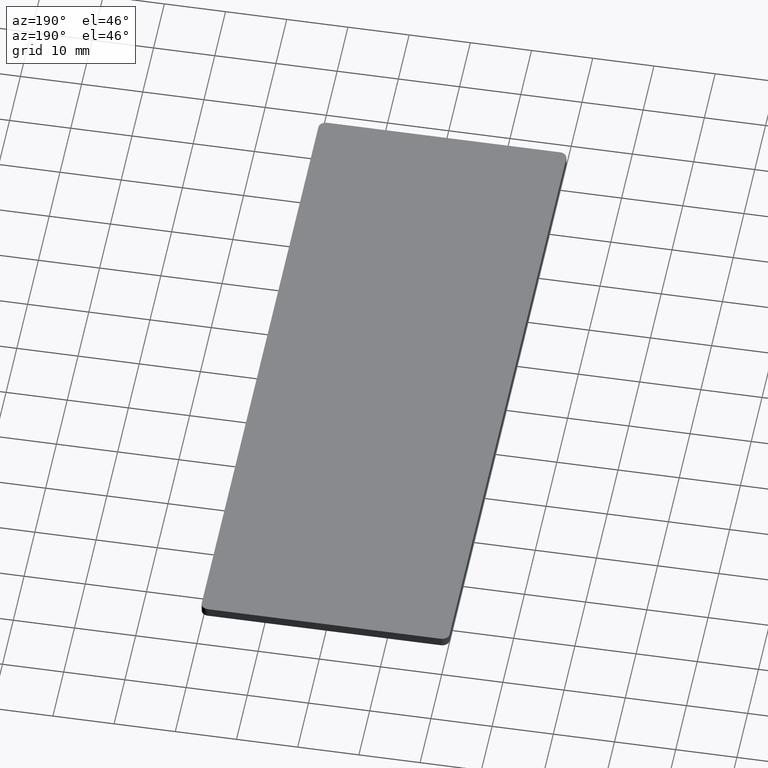
[diagram: clean part render]
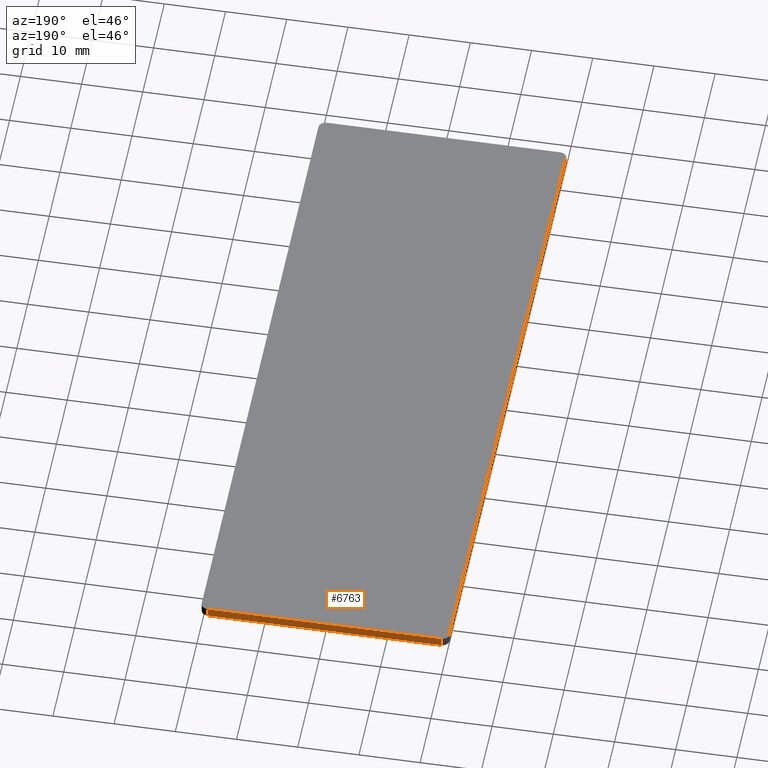
[diagram: same view with one face highlighted and labeled with its STEP entity id]
A machine part, auxiliary view. The second image highlights one B-rep face of the part: STEP entity #6763.
In plain terms, the highlighted planar face has unit normal (0, 1, 0).
Its self-contained STEP definition (entity closure, byte-faithful):
#537 = CARTESIAN_POINT ( 'NONE',  ( 19.04999999999999400, 55.25000000000000000, 1.500000000000000000 ) ) ;
#760 = EDGE_CURVE ( 'NONE', #6534, #10916, #3509, .T. ) ;
#887 = CARTESIAN_POINT ( 'NONE',  ( -19.05000000000000800, 55.25000000000000000, 1.500000000000000000 ) ) ;
#1136 = EDGE_CURVE ( 'NONE', #9168, #10916, #1820, .T. ) ;
#1370 = LINE ( 'NONE', #11237, #6253 ) ;
#1677 = CARTESIAN_POINT ( 'NONE',  ( 19.04999999999999400, 55.25000000000000000, 0.0000000000000000000 ) ) ;
#1820 = LINE ( 'NONE', #7891, #7461 ) ;
#1877 = LINE ( 'NONE', #4191, #7064 ) ;
#3061 = VERTEX_POINT ( 'NONE', #887 ) ;
#3228 = AXIS2_PLACEMENT_3D ( 'NONE', #10281, #5402, #3445 ) ;
#3384 = ORIENTED_EDGE ( 'NONE', *, *, #1136, .F. ) ;
#3445 = DIRECTION ( 'NONE',  ( 0.0000000000000000000, -0.0000000000000000000, 1.000000000000000000 ) ) ;
#3509 = LINE ( 'NONE', #9617, #10037 ) ;
#3917 = DIRECTION ( 'NONE',  ( -0.0000000000000000000, 0.0000000000000000000, -1.000000000000000000 ) ) ;
#4191 = CARTESIAN_POINT ( 'NONE',  ( -20.25000000000000700, 55.25000000000000000, 1.500000000000000000 ) ) ;
#4501 = ORIENTED_EDGE ( 'NONE', *, *, #12465, .T. ) ;
#5032 = DIRECTION ( 'NONE',  ( 1.000000000000000000, 0.0000000000000000000, 0.0000000000000000000 ) ) ;
#5402 = DIRECTION ( 'NONE',  ( 0.0000000000000000000, 1.000000000000000000, 0.0000000000000000000 ) ) ;
#5940 = DIRECTION ( 'NONE',  ( 1.000000000000000000, 0.0000000000000000000, 0.0000000000000000000 ) ) ;
#6253 = VECTOR ( 'NONE', #7460, 1000.000000000000000 ) ;
#6303 = PLANE ( 'NONE',  #3228 ) ;
#6447 = EDGE_CURVE ( 'NONE', #3061, #6534, #1877, .T. ) ;
#6534 = VERTEX_POINT ( 'NONE', #537 ) ;
#6763 = ADVANCED_FACE ( 'NONE', ( #6899 ), #6303, .T. ) ;
#6899 = FACE_OUTER_BOUND ( 'NONE', #12583, .T. ) ;
#7064 = VECTOR ( 'NONE', #5032, 1000.000000000000000 ) ;
#7460 = DIRECTION ( 'NONE',  ( -0.0000000000000000000, -0.0000000000000000000, 1.000000000000000000 ) ) ;
#7461 = VECTOR ( 'NONE', #5940, 1000.000000000000000 ) ;
#7891 = CARTESIAN_POINT ( 'NONE',  ( -20.25000000000000700, 55.25000000000000000, 0.0000000000000000000 ) ) ;
#8606 = CARTESIAN_POINT ( 'NONE',  ( -19.05000000000000800, 55.25000000000000000, 0.0000000000000000000 ) ) ;
#9168 = VERTEX_POINT ( 'NONE', #8606 ) ;
#9617 = CARTESIAN_POINT ( 'NONE',  ( 19.04999999999999400, 55.25000000000000000, 1.500000000000000000 ) ) ;
#10037 = VECTOR ( 'NONE', #3917, 1000.000000000000000 ) ;
#10281 = CARTESIAN_POINT ( 'NONE',  ( -20.25000000000000700, 55.25000000000000000, 1.500000000000000000 ) ) ;
#10532 = ORIENTED_EDGE ( 'NONE', *, *, #760, .T. ) ;
#10916 = VERTEX_POINT ( 'NONE', #1677 ) ;
#11237 = CARTESIAN_POINT ( 'NONE',  ( -19.05000000000000800, 55.25000000000000000, 1.500000000000000000 ) ) ;
#11808 = ORIENTED_EDGE ( 'NONE', *, *, #6447, .T. ) ;
#12465 = EDGE_CURVE ( 'NONE', #9168, #3061, #1370, .T. ) ;
#12583 = EDGE_LOOP ( 'NONE', ( #3384, #4501, #11808, #10532 ) ) ;